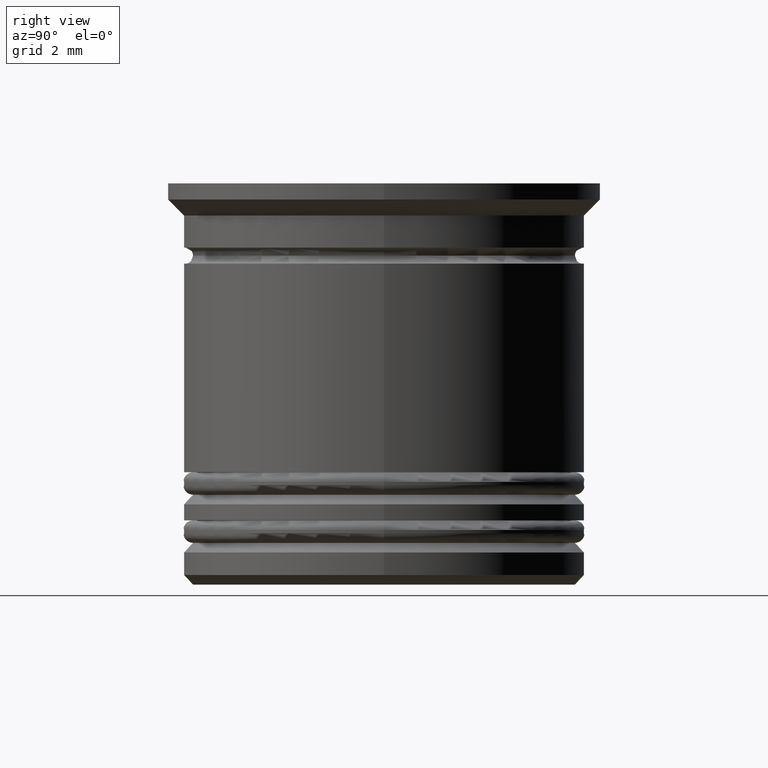
[diagram: clean part render]
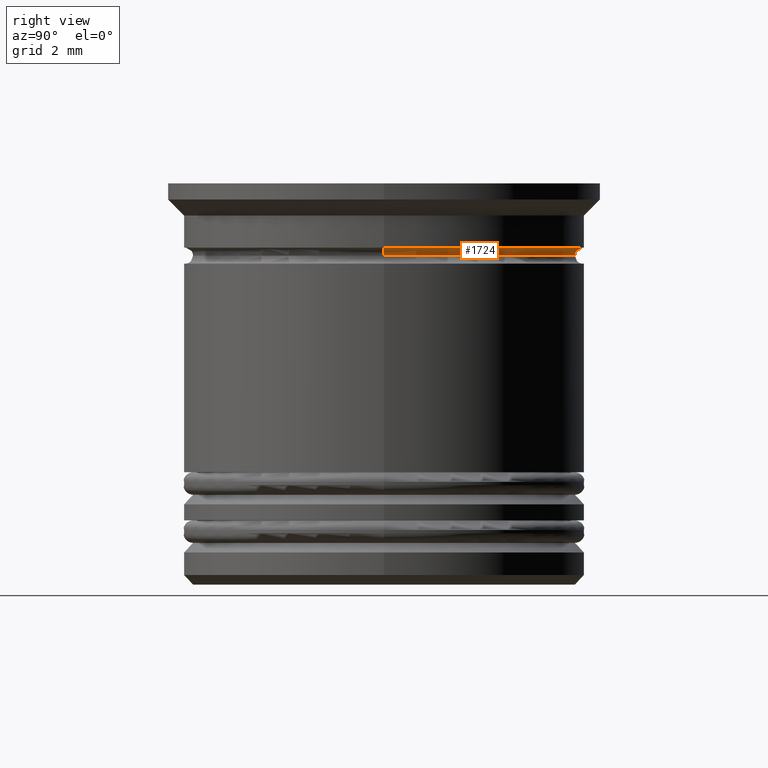
[diagram: same view with one face highlighted and labeled with its STEP entity id]
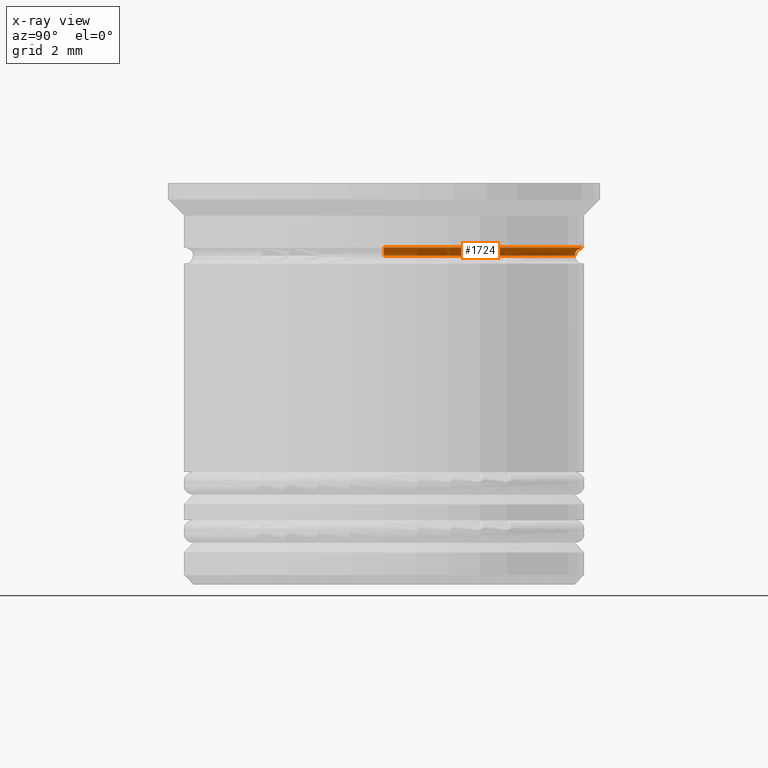
[diagram: x-ray of the same camera — body ghosted, the highlighted face saturated]
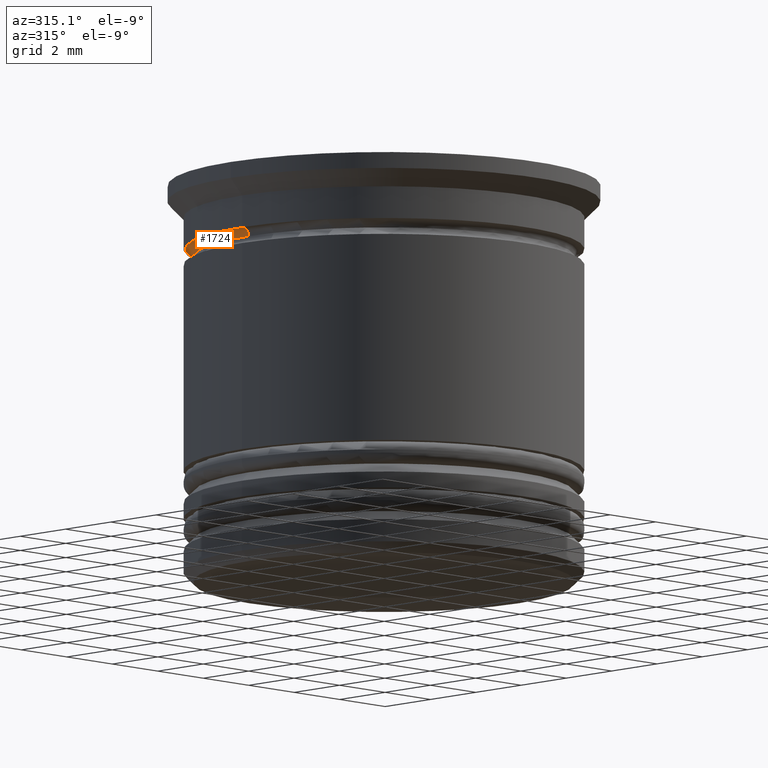
[diagram: same view with one face highlighted and labeled with its STEP entity id]
A machine part, right view. The second image highlights one B-rep face of the part: STEP entity #1724.
The next image is the same camera in x-ray: the body ghosted, the highlighted face saturated — about 0% of this face is hidden behind the body in this view.
A second angle (auxiliary view) of the same face is appended — the face is thin or edge-on in the first view.
In plain terms, the highlighted toroidal blend (fillet) surface has major radius 6.2 mm and minor (blend) radius 0.25 mm.
Its self-contained STEP definition (entity closure, byte-faithful):
#58 = DIRECTION ( 'NONE',  ( 1.000000000000000000, 0.000000000000000000, 0.000000000000000000 ) ) ;
#123 = DIRECTION ( 'NONE',  ( -0.000000000000000000, -0.000000000000000000, 1.000000000000000000 ) ) ;
#152 = ORIENTED_EDGE ( 'NONE', *, *, #182, .F. ) ;
#182 = EDGE_CURVE ( 'NONE', #1390, #1536, #1869, .T. ) ;
#197 = CIRCLE ( 'NONE', #1816, 0.2499999999999993616 ) ;
#260 = CARTESIAN_POINT ( 'NONE',  ( 6.200000000000000178, 0.000000000000000000, -2.250000000000000000 ) ) ;
#282 = EDGE_LOOP ( 'NONE', ( #1073, #1886, #1351, #152 ) ) ;
#300 = CIRCLE ( 'NONE', #1411, 0.2499999999999993616 ) ;
#302 = TOROIDAL_SURFACE ( 'NONE', #1784, 6.200000000000000178, 0.2499999999999993616 ) ;
#522 = CARTESIAN_POINT ( 'NONE',  ( -6.200000000000000178, 7.592810154713589835E-16, -2.000000000000000444 ) ) ;
#569 = DIRECTION ( 'NONE',  ( -1.000000000000000000, 1.224646799147353700E-16, 0.000000000000000000 ) ) ;
#571 = DIRECTION ( 'NONE',  ( 0.000000000000000000, -1.000000000000000000, 0.000000000000000000 ) ) ;
#611 = AXIS2_PLACEMENT_3D ( 'NONE', #1713, #671, #58 ) ;
#649 = VERTEX_POINT ( 'NONE', #1930 ) ;
#669 = VERTEX_POINT ( 'NONE', #677 ) ;
#671 = DIRECTION ( 'NONE',  ( -0.000000000000000000, -0.000000000000000000, 1.000000000000000000 ) ) ;
#677 = CARTESIAN_POINT ( 'NONE',  ( 5.950000000000000178, 0.000000000000000000, -2.250000000000000000 ) ) ;
#692 = DIRECTION ( 'NONE',  ( 0.000000000000000000, 0.000000000000000000, -1.000000000000000000 ) ) ;
#779 = CIRCLE ( 'NONE', #611, 5.950000000000000178 ) ;
#879 = DIRECTION ( 'NONE',  ( 1.000000000000000000, 0.000000000000000000, 0.000000000000000000 ) ) ;
#1073 = ORIENTED_EDGE ( 'NONE', *, *, #1638, .T. ) ;
#1074 = EDGE_CURVE ( 'NONE', #669, #649, #779, .T. ) ;
#1110 = CARTESIAN_POINT ( 'NONE',  ( -6.200000000000000178, 7.592810154713589835E-16, -2.250000000000000000 ) ) ;
#1351 = ORIENTED_EDGE ( 'NONE', *, *, #1824, .F. ) ;
#1353 = CARTESIAN_POINT ( 'NONE',  ( 6.200000000000000178, 0.000000000000000000, -2.000000000000000444 ) ) ;
#1390 = VERTEX_POINT ( 'NONE', #1353 ) ;
#1411 = AXIS2_PLACEMENT_3D ( 'NONE', #260, #571, #692 ) ;
#1477 = CARTESIAN_POINT ( 'NONE',  ( 0.000000000000000000, 0.000000000000000000, -2.000000000000000444 ) ) ;
#1481 = FACE_OUTER_BOUND ( 'NONE', #282, .T. ) ;
#1536 = VERTEX_POINT ( 'NONE', #522 ) ;
#1625 = CARTESIAN_POINT ( 'NONE',  ( 0.000000000000000000, 0.000000000000000000, -2.250000000000000000 ) ) ;
#1635 = DIRECTION ( 'NONE',  ( 1.224646799147353207E-16, 1.000000000000000000, 0.000000000000000000 ) ) ;
#1638 = EDGE_CURVE ( 'NONE', #1390, #669, #300, .T. ) ;
#1675 = AXIS2_PLACEMENT_3D ( 'NONE', #1477, #123, #879 ) ;
#1713 = CARTESIAN_POINT ( 'NONE',  ( 0.000000000000000000, 0.000000000000000000, -2.250000000000000000 ) ) ;
#1724 = ADVANCED_FACE ( 'NONE', ( #1481 ), #302, .F. ) ;
#1784 = AXIS2_PLACEMENT_3D ( 'NONE', #1625, #1887, #1786 ) ;
#1786 = DIRECTION ( 'NONE',  ( 1.000000000000000000, 0.000000000000000000, 0.000000000000000000 ) ) ;
#1816 = AXIS2_PLACEMENT_3D ( 'NONE', #1110, #1635, #569 ) ;
#1824 = EDGE_CURVE ( 'NONE', #1536, #649, #197, .T. ) ;
#1869 = CIRCLE ( 'NONE', #1675, 6.200000000000000178 ) ;
#1886 = ORIENTED_EDGE ( 'NONE', *, *, #1074, .T. ) ;
#1887 = DIRECTION ( 'NONE',  ( -0.000000000000000000, -0.000000000000000000, 1.000000000000000000 ) ) ;
#1930 = CARTESIAN_POINT ( 'NONE',  ( -5.950000000000000178, 7.286648454926751965E-16, -2.250000000000000000 ) ) ;